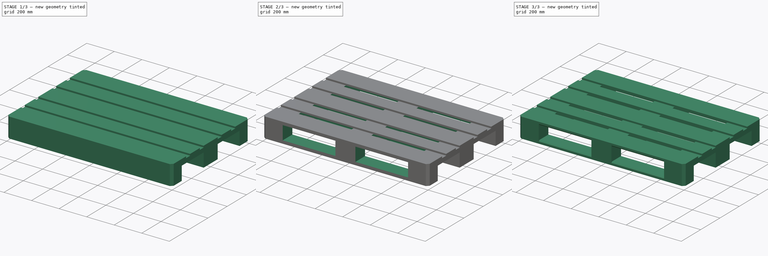
[diagram: build sequence overview — one tinted view per stage of 3, left to right]
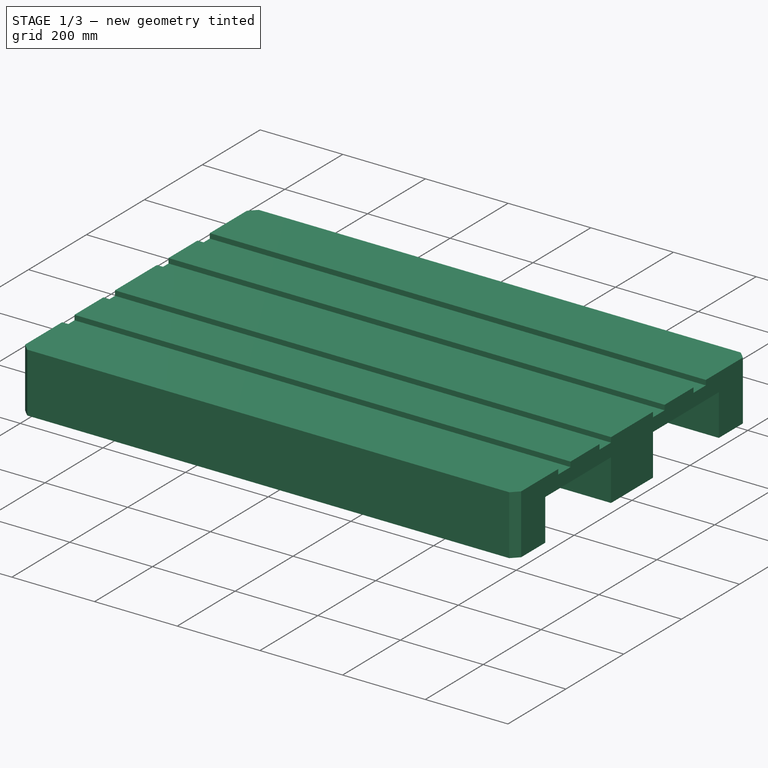
[diagram: stage 1 of 3 — iso view after this stage's code; geometry added in this stage tinted green]
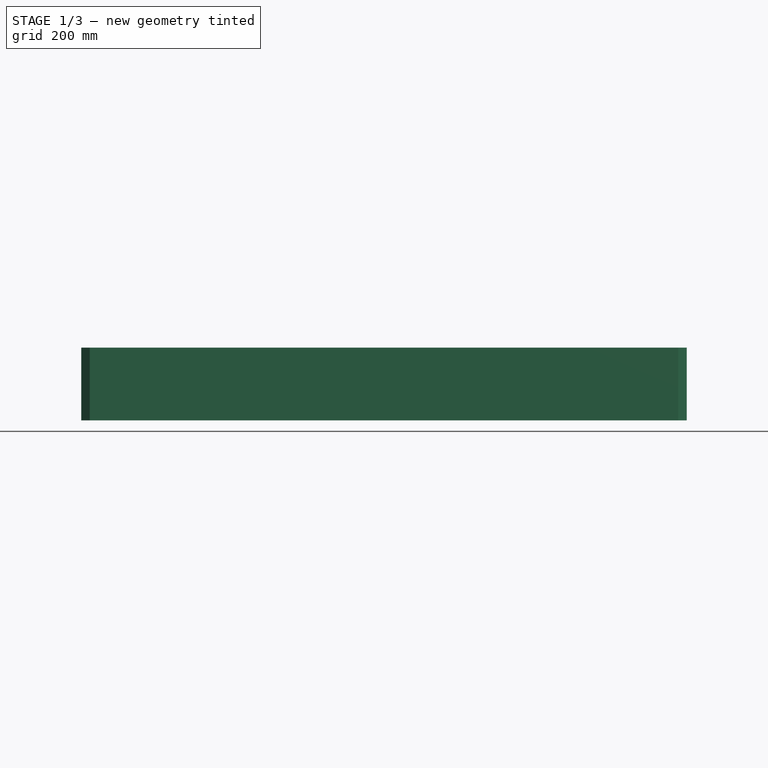
[diagram: stage 1 of 3 — front view after this stage's code; geometry added in this stage tinted green]
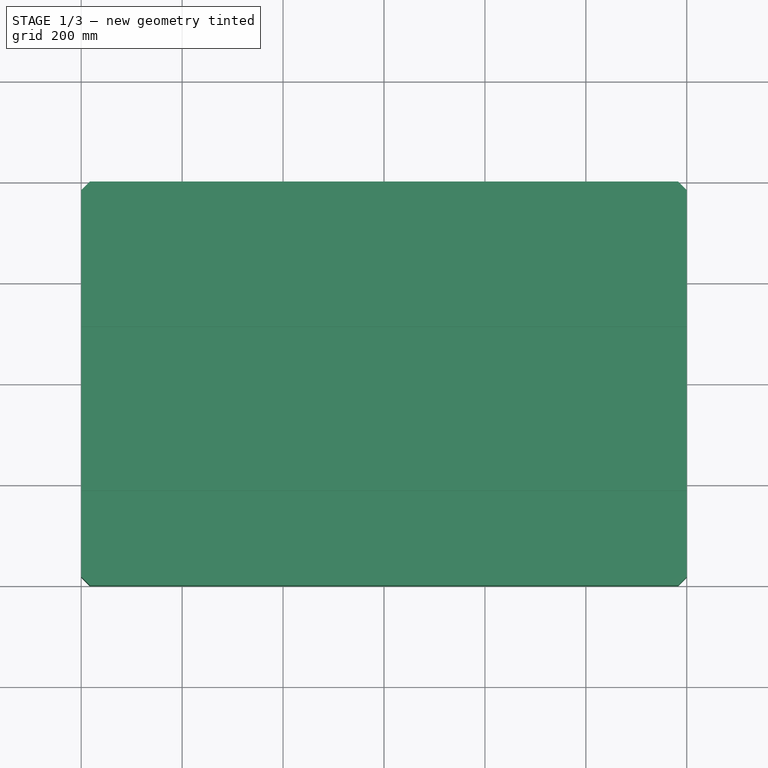
[diagram: stage 1 of 3 — top view after this stage's code; geometry added in this stage tinted green]
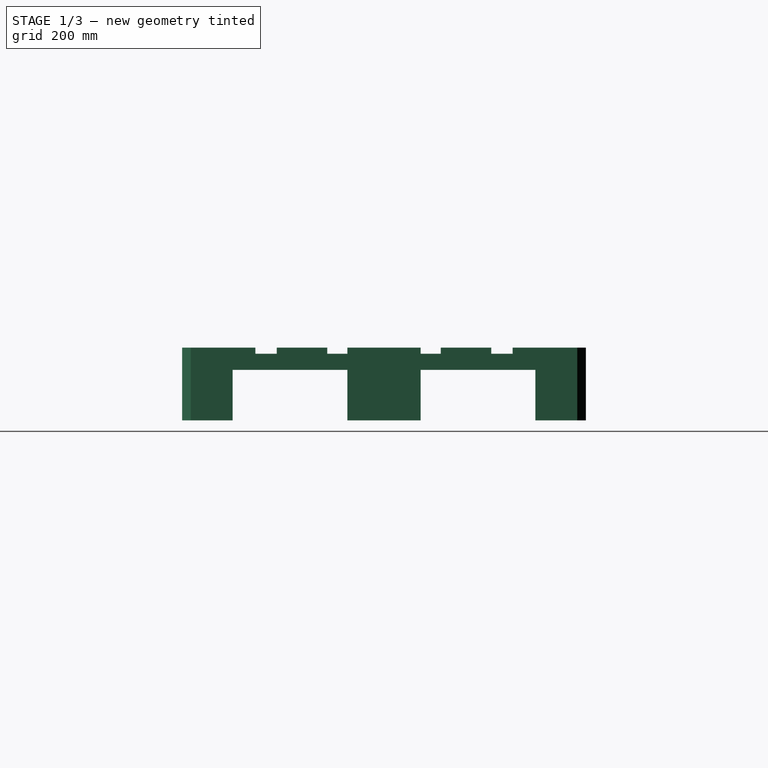
[diagram: stage 1 of 3 — right view after this stage's code; geometry added in this stage tinted green]
FCSTD DOCUMENT  (FreeCAD 0.21R33668 +26 (Git))
Label: eur-pallet
License: All rights reserved
LicenseURL: https://en.wikipedia.org/wiki/All_rights_reserved
objects: Sketcher::SketchObject×3, PartDesign::Chamfer×3, PartDesign::Pocket×2, PartDesign::Pad×1, PartDesign::Body×1, App::MaterialObjectPython×1, App::DocumentObjectGroupPython×1
note: 16 computed .brp shape members not serialized (recipe doc carries the construction recipe); baked Part::Feature solids carry a one-line shape summary decoded from their .brp

FEATURE [Sketcher::SketchObject] Sketch
  FullyConstrained = true
  MapMode = 5
  Placement = pos=(0,0,0) rot=(0.57735,0.57735,0.57735;2.0944rad)
  Support = -> [YZ_Plane]
  sketch-geometry (40):
    g0: LineSegment StartX=800 StartY=0 StartZ=0 EndX=800 EndY=144 EndZ=0
    g1: LineSegment StartX=0 StartY=144 StartZ=0 EndX=0 EndY=0 EndZ=0
    g2: GeomPoint X=100 Y=0 Z=0
    g3: GeomPoint X=700 Y=0 Z=0
    g4: LineSegment StartX=100 StartY=0 StartZ=0 EndX=100 EndY=100 EndZ=0
    g5: LineSegment StartX=700 StartY=0 StartZ=0 EndX=700 EndY=100 EndZ=0
    g6: GeomPoint X=327.5 Y=0 Z=0
    g7: GeomPoint X=472.5 Y=0 Z=0
    g8: LineSegment StartX=327.5 StartY=0 StartZ=0 EndX=327.5 EndY=100 EndZ=0
    g9: LineSegment StartX=472.5 StartY=0 StartZ=0 EndX=472.5 EndY=100 EndZ=0
    g10: LineSegment StartX=100 StartY=100 StartZ=0 EndX=327.5 EndY=100 EndZ=0
    g11: LineSegment StartX=472.5 StartY=100 StartZ=0 EndX=700 EndY=100 EndZ=0
    g12: GeomPoint X=145 Y=144 Z=0
    g13: GeomPoint X=655 Y=144 Z=0
    g14: GeomPoint X=327.5 Y=144 Z=0
    g15: GeomPoint X=472.5 Y=144 Z=0
    g16: LineSegment StartX=0 StartY=0 StartZ=0 EndX=100 EndY=0 EndZ=0
    g17: LineSegment StartX=327.5 StartY=0 StartZ=0 EndX=472.5 EndY=0 EndZ=0
    g18: LineSegment StartX=700 StartY=0 StartZ=0 EndX=800 EndY=0 EndZ=0
    g19: LineSegment StartX=145 StartY=144 StartZ=0 EndX=145 EndY=132 EndZ=0
    g20: GeomPoint X=187.5 Y=144 Z=0
    g21: LineSegment StartX=187.5 StartY=144 StartZ=0 EndX=187.5 EndY=132 EndZ=0
    g22: GeomPoint X=287.5 Y=144 Z=0
    g23: LineSegment StartX=327.5 StartY=144 StartZ=0 EndX=327.5 EndY=132 EndZ=0
    g24: LineSegment StartX=287.5 StartY=144 StartZ=0 EndX=287.5 EndY=132 EndZ=0
    g25: GeomPoint X=612.5 Y=144 Z=0
    g26: GeomPoint X=512.5 Y=144 Z=0
    g27: LineSegment StartX=512.5 StartY=144 StartZ=0 EndX=512.5 EndY=132 EndZ=0
    g28: LineSegment StartX=612.5 StartY=144 StartZ=0 EndX=612.5 EndY=132 EndZ=0
    g29: LineSegment StartX=472.5 StartY=144 StartZ=0 EndX=472.5 EndY=132 EndZ=0
    g30: LineSegment StartX=655 StartY=144 StartZ=0 EndX=655 EndY=132 EndZ=0
    g31: LineSegment StartX=145 StartY=132 StartZ=0 EndX=187.5 EndY=132 EndZ=0
    g32: LineSegment StartX=287.5 StartY=132 StartZ=0 EndX=327.5 EndY=132 EndZ=0
    g33: LineSegment StartX=472.5 StartY=132 StartZ=0 EndX=512.5 EndY=132 EndZ=0
    g34: LineSegment StartX=612.5 StartY=132 StartZ=0 EndX=655 EndY=132 EndZ=0
    g35: LineSegment StartX=0 StartY=144 StartZ=0 EndX=145 EndY=144 EndZ=0
    g36: LineSegment StartX=187.5 StartY=144 StartZ=0 EndX=287.5 EndY=144 EndZ=0
    g37: LineSegment StartX=327.5 StartY=144 StartZ=0 EndX=472.5 EndY=144 EndZ=0
    g38: LineSegment StartX=512.5 StartY=144 StartZ=0 EndX=612.5 EndY=144 EndZ=0
    g39: LineSegment StartX=655 StartY=144 StartZ=0 EndX=800 EndY=144 EndZ=0
  constraints (95):
    c: Vertical(g0)
    c: Vertical(g1)
    c: Coincident(g4,g2)
    c: Vertical(g4)
    c: Coincident(g5,g3)
    c: Vertical(g5)
    c: Coincident(g8,g6)
    c: Vertical(g8)
    c: Coincident(g9,g7)
    c: Vertical(g9)
    c: DistanceY(g4,g4) = 100
    c: DistanceX(g1,g4) = 100
    c: DistanceX(g5,g0) = 100
    c: Horizontal(g8,g4)
    c: Horizontal(g4,g9)
    c: Horizontal(g9,g5)
    c: DistanceX(g4,g8) = 227.5
    c: DistanceX(g8,g9) = 145
    c: DistanceX(g1,g0) = 800
    c: Coincident(g10,g4)
    c: Coincident(g10,g8)
    c: Coincident(g11,g9)
    c: Coincident(g11,g5)
    c: DistanceX(g1,g12) = 145
    c: DistanceX(g13,g0) = 145
    c: DistanceY(g1,g1) = 144
    c: Coincident(g16,g1)
    c: Coincident(g16,g4)
    c: Horizontal(g16)
    c: Coincident(g17,g8)
    c: Coincident(g17,g9)
    c: Horizontal(g17)
    c: Coincident(g18,g5)
    c: Coincident(g18,g0)
    c: Horizontal(g18)
    c: Coincident(g19,g12)
    c: Vertical(g19)
    c: Coincident(g21,g20)
    c: Vertical(g21)
    c: DistanceX(g14,g15) = 145
    c: Vertical(g8,g14)
    c: Coincident(g23,g14)
    c: Vertical(g23)
    c: Coincident(g24,g22)
    c: Vertical(g24)
    c: DistanceX(g21,g24) = 100
    c: Coincident(g27,g26)
    c: Vertical(g27)
    c: Coincident(g28,g25)
    c: Vertical(g28)
    c: DistanceX(g27,g28) = 100
    c: DistanceY(g19,g19) = 12
    c: Coincident(g29,g15)
    c: Vertical(g29)
    c: Coincident(g30,g13)
    c: Vertical(g30)
    c: Horizontal(g19,g21)
    c: Horizontal(g21,g24)
    c: Horizontal(g24,g23)
    c: Horizontal(g23,g29)
    c: Horizontal(g29,g27)
    c: Horizontal(g27,g28)
    c: Horizontal(g28,g30)
    c: Coincident(g31,g19)
    c: Coincident(g31,g21)
    c: Coincident(g32,g24)
    c: Coincident(g32,g23)
    c: Coincident(g33,g29)
    c: Coincident(g33,g27)
    c: Coincident(g34,g28)
    c: Coincident(g34,g30)
    c: Coincident(g35,g1)
    c: Coincident(g35,g19)
    c: Horizontal(g35)
    c: Coincident(g36,g21)
    c: Coincident(g36,g24)
    c: Horizontal(g36)
    c: Coincident(g37,g23)
    c: Coincident(g37,g29)
    c: Horizontal(g37)
    c: Coincident(g38,g27)
    c: Coincident(g38,g28)
    c: Horizontal(g38)
    c: Coincident(g39,g30)
    c: Coincident(g39,g0)
    c: Horizontal(g39)
    c: DistanceX(g24,g23) = 40
    c: DistanceX(g29,g27) = 40
    c: Horizontal(g19,g21)
    c: Horizontal(g24,g23)
    c: Horizontal(g29,g27)
    c: Horizontal(g28,g30)
    c: Coincident(g-1,g1)
    c: Horizontal(g8,g4)
    c: Horizontal(g9,g5)
FEATURE [PartDesign::Pad] Pad
  Direction = (1,-2e-16,3e-16)
  Length = 1200
  Length2 = 10
  Placement = pos=(0,0,0) rot=(1,1,1;2.0944rad)
  Profile = -> Sketch
  ReferenceAxis = -> Sketch [N_Axis]
  Type = 0
FEATURE [PartDesign::Chamfer] Chamfer
  Angle = 45
  Base = -> Pad [Edge61,Edge60,Edge6,Edge7]
  BaseFeature = -> Pad
  ChamferType = 0
  FlipDirection = false
  Placement = pos=(0,0,0) rot=(1,1,1;2.0944rad)
  Size = 17
  Size2 = 1
  SupportTransform = false
  UseAllEdges = false
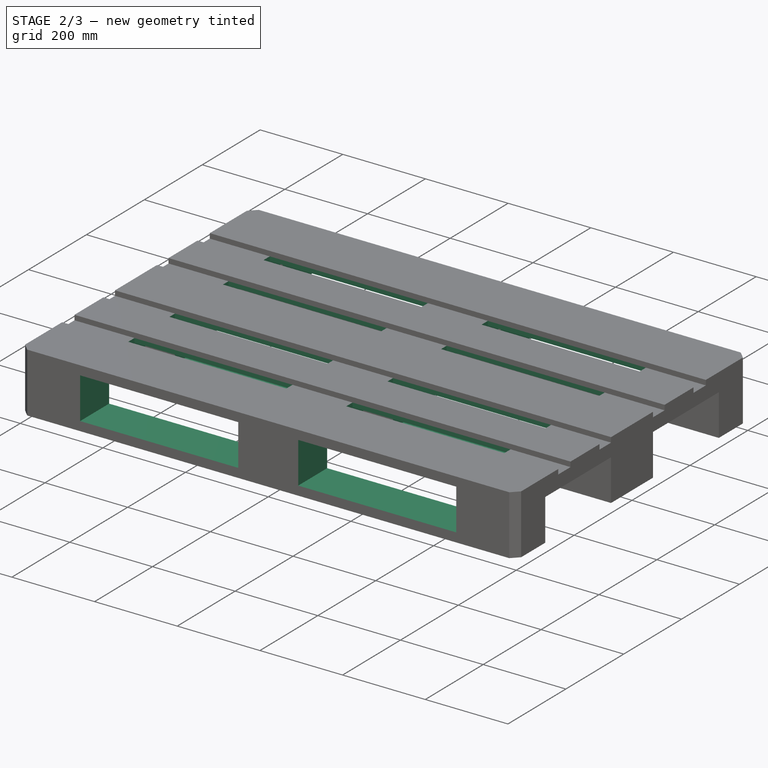
[diagram: stage 2 of 3 — iso view after this stage's code; geometry added in this stage tinted green]
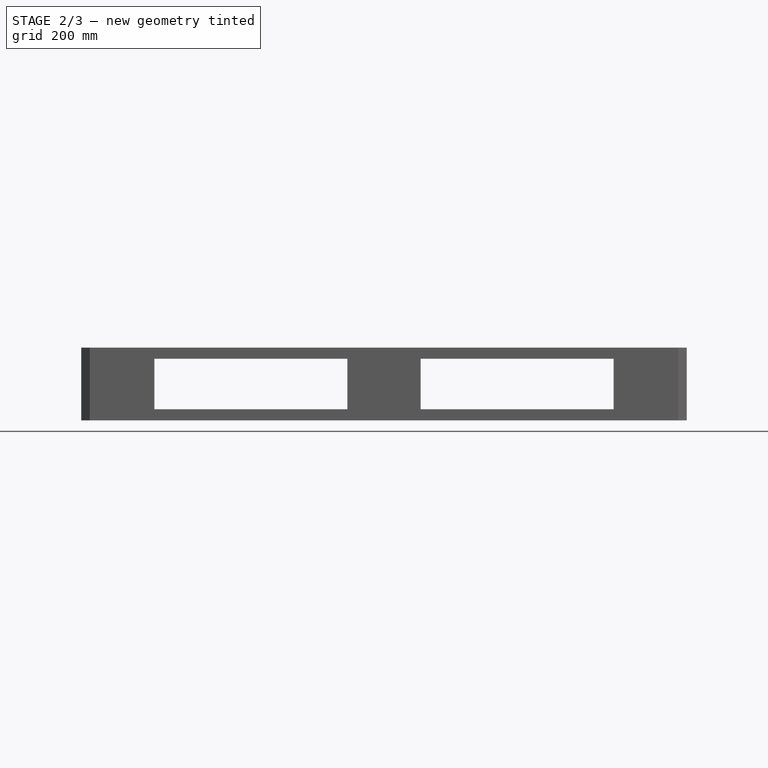
[diagram: stage 2 of 3 — front view after this stage's code; geometry added in this stage tinted green]
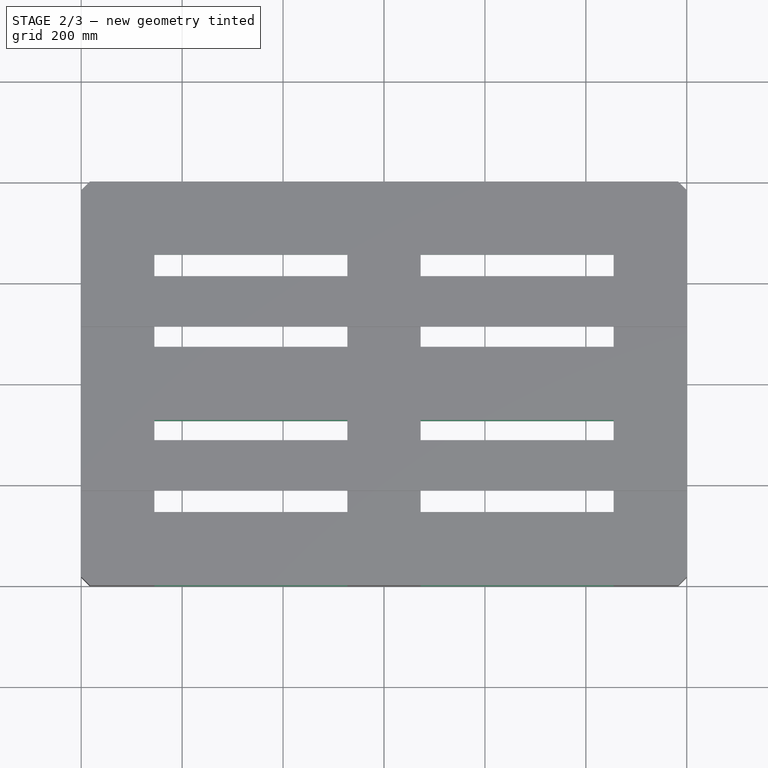
[diagram: stage 2 of 3 — top view after this stage's code; geometry added in this stage tinted green]
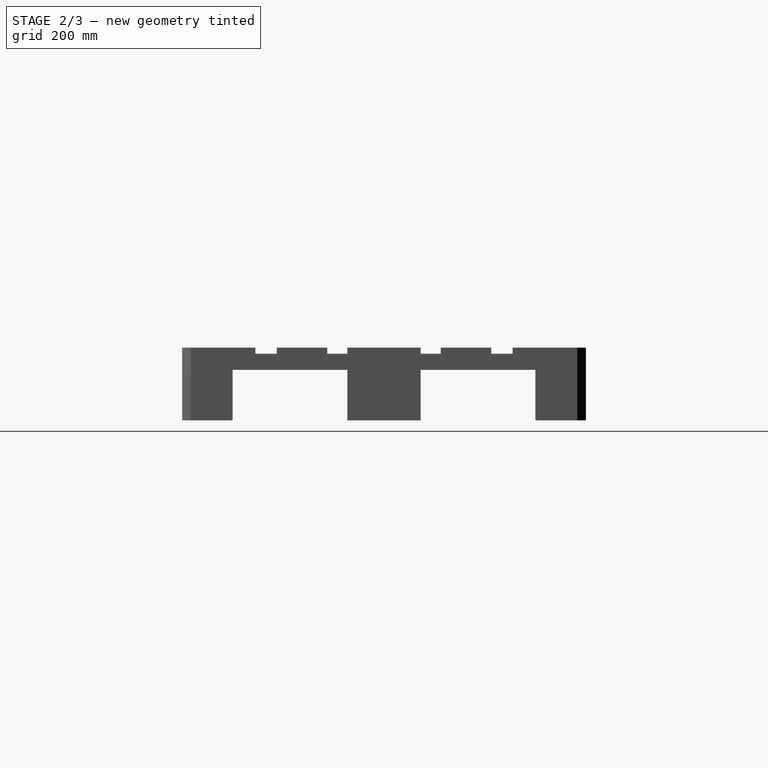
[diagram: stage 2 of 3 — right view after this stage's code; geometry added in this stage tinted green]
FEATURE [Sketcher::SketchObject] Sketch001
  ExternalGeometry = -> [Chamfer]
  FullyConstrained = true
  MapMode = 5
  Support = -> [XY_Plane]
  sketch-geometry (57):
    g0: LineSegment StartX=9.39e-14 StartY=783 StartZ=0 EndX=1200 EndY=783 EndZ=0
    g1: GeomPoint X=145 Y=783 Z=0
    g2: GeomPoint X=527.5 Y=783 Z=0
    g3: GeomPoint X=672.5 Y=783 Z=0
    g4: GeomPoint X=1055 Y=783 Z=0
    g5: LineSegment StartX=6.27e-14 StartY=612.5 StartZ=0 EndX=1200 EndY=612.5 EndZ=0
    g6: LineSegment StartX=1200 StartY=612.5 StartZ=0 EndX=1200 EndY=655 EndZ=0
    g7: LineSegment StartX=1200 StartY=655 StartZ=0 EndX=0 EndY=655 EndZ=0
    g8: LineSegment StartX=6.27e-14 StartY=655 StartZ=0 EndX=6.27e-14 EndY=612.5 EndZ=0
    g9: LineSegment StartX=1200 StartY=287.5 StartZ=0 EndX=0 EndY=287.5 EndZ=0
    g10: LineSegment StartX=-7.2e-15 StartY=287.5 StartZ=0 EndX=-7.2e-15 EndY=327.5 EndZ=0
    g11: LineSegment StartX=-7.2e-15 StartY=327.5 StartZ=0 EndX=1200 EndY=327.5 EndZ=0
    g12: LineSegment StartX=1200 StartY=327.5 StartZ=0 EndX=1200 EndY=287.5 EndZ=0
    g13: LineSegment StartX=0 StartY=472.5 StartZ=0 EndX=1200 EndY=472.5 EndZ=0
    g14: LineSegment StartX=1200 StartY=472.5 StartZ=0 EndX=1200 EndY=512.5 EndZ=0
    g15: LineSegment StartX=1200 StartY=512.5 StartZ=0 EndX=0 EndY=512.5 EndZ=0
    g16: LineSegment StartX=0 StartY=512.5 StartZ=0 EndX=0 EndY=472.5 EndZ=0
    g17: LineSegment StartX=1200 StartY=187.5 StartZ=0 EndX=0 EndY=187.5 EndZ=0
    g18: LineSegment StartX=-4.77e-14 StartY=187.5 StartZ=0 EndX=-4.77e-14 EndY=145 EndZ=0
    g19: LineSegment StartX=-4.77e-14 StartY=145 StartZ=0 EndX=1200 EndY=145 EndZ=0
    g20: LineSegment StartX=1200 StartY=145 StartZ=0 EndX=1200 EndY=187.5 EndZ=0
    g21: LineSegment StartX=145 StartY=783 StartZ=0 EndX=145 EndY=145 EndZ=0
    g22: LineSegment StartX=527.5 StartY=783 StartZ=0 EndX=527.5 EndY=145 EndZ=0
    g23: LineSegment StartX=1055 StartY=783 StartZ=0 EndX=1055 EndY=145 EndZ=0
    g24: LineSegment StartX=672.5 StartY=783 StartZ=0 EndX=672.5 EndY=145 EndZ=0
    g25: LineSegment StartX=527.5 StartY=145 StartZ=0 EndX=145 EndY=145 EndZ=0
    g26: LineSegment StartX=145 StartY=145 StartZ=0 EndX=145 EndY=187.5 EndZ=0
    g27: LineSegment StartX=145 StartY=187.5 StartZ=0 EndX=527.5 EndY=187.5 EndZ=0
    g28: LineSegment StartX=527.5 StartY=187.5 StartZ=0 EndX=527.5 EndY=145 EndZ=0
    g29: LineSegment StartX=672.5 StartY=145 StartZ=0 EndX=1055 EndY=145 EndZ=0
    g30: LineSegment StartX=1055 StartY=145 StartZ=0 EndX=1055 EndY=187.5 EndZ=0
    g31: LineSegment StartX=1055 StartY=187.5 StartZ=0 EndX=672.5 EndY=187.5 EndZ=0
    g32: LineSegment StartX=672.5 StartY=187.5 StartZ=0 EndX=672.5 EndY=145 EndZ=0
    g33: LineSegment StartX=145 StartY=287.5 StartZ=0 EndX=527.5 EndY=287.5 EndZ=0
    g34: LineSegment StartX=527.5 StartY=287.5 StartZ=0 EndX=527.5 EndY=327.5 EndZ=0
    g35: LineSegment StartX=527.5 StartY=327.5 StartZ=0 EndX=145 EndY=327.5 EndZ=0
    g36: LineSegment StartX=145 StartY=327.5 StartZ=0 EndX=145 EndY=287.5 EndZ=0
    g37: LineSegment StartX=672.5 StartY=287.5 StartZ=0 EndX=1055 EndY=287.5 EndZ=0
    g38: LineSegment StartX=1055 StartY=287.5 StartZ=0 EndX=1055 EndY=327.5 EndZ=0
    g39: LineSegment StartX=1055 StartY=327.5 StartZ=0 EndX=672.5 EndY=327.5 EndZ=0
    g40: LineSegment StartX=672.5 StartY=327.5 StartZ=0 EndX=672.5 EndY=287.5 EndZ=0
    g41: LineSegment StartX=145 StartY=472.5 StartZ=0 EndX=527.5 EndY=472.5 EndZ=0
    g42: LineSegment StartX=527.5 StartY=472.5 StartZ=0 EndX=527.5 EndY=512.5 EndZ=0
    g43: LineSegment StartX=527.5 StartY=512.5 StartZ=0 EndX=145 EndY=512.5 EndZ=0
    g44: LineSegment StartX=145 StartY=512.5 StartZ=0 EndX=145 EndY=472.5 EndZ=0
    g45: LineSegment StartX=672.5 StartY=472.5 StartZ=0 EndX=1055 EndY=472.5 EndZ=0
    g46: LineSegment StartX=1055 StartY=472.5 StartZ=0 EndX=1055 EndY=512.5 EndZ=0
    g47: LineSegment StartX=1055 StartY=512.5 StartZ=0 EndX=672.5 EndY=512.5 EndZ=0
    g48: LineSegment StartX=672.5 StartY=512.5 StartZ=0 EndX=672.5 EndY=472.5 EndZ=0
    g49: LineSegment StartX=145 StartY=612.5 StartZ=0 EndX=527.5 EndY=612.5 EndZ=0
    g50: LineSegment StartX=527.5 StartY=612.5 StartZ=0 EndX=527.5 EndY=655 EndZ=0
    g51: LineSegment StartX=527.5 StartY=655 StartZ=0 EndX=145 EndY=655 EndZ=0
    g52: LineSegment StartX=145 StartY=655 StartZ=0 EndX=145 EndY=612.5 EndZ=0
    g53: LineSegment StartX=672.5 StartY=612.5 StartZ=0 EndX=1055 EndY=612.5 EndZ=0
    g54: LineSegment StartX=1055 StartY=612.5 StartZ=0 EndX=1055 EndY=655 EndZ=0
    g55: LineSegment StartX=1055 StartY=655 StartZ=0 EndX=672.5 EndY=655 EndZ=0
    g56: LineSegment StartX=672.5 StartY=655 StartZ=0 EndX=672.5 EndY=612.5 EndZ=0
  constraints (156):
    c: Coincident(g0,g-3)
    c: Coincident(g0,g-13)
    c: PointOnObject(g1,g0)
    c: PointOnObject(g2,g0)
    c: PointOnObject(g3,g0)
    c: PointOnObject(g4,g0)
    c: DistanceX(g0,g1) = 145
    c: DistanceX(g4,g0) = 145
    c: DistanceX(g2,g3) = 145
    c: DistanceX(g3,g4) = 382.5
    c: Coincident(g5,g6)
    c: Coincident(g6,g7)
    c: Coincident(g7,g8)
    c: Coincident(g8,g5)
    c: Horizontal(g5)
    c: Horizontal(g7)
    c: Vertical(g6)
    c: Vertical(g8)
    c: Coincident(g5,g-21)
    c: Coincident(g6,g-13)
    c: Coincident(g9,g10)
    c: Coincident(g10,g11)
    c: Coincident(g11,g12)
    c: Coincident(g12,g9)
    c: Horizontal(g9)
    c: Horizontal(g11)
    c: Vertical(g10)
    c: Vertical(g12)
    c: Coincident(g9,g-8)
    c: Coincident(g10,g-18)
    c: Coincident(g13,g14)
    c: Coincident(g14,g15)
    c: Coincident(g15,g16)
    c: Coincident(g16,g13)
    c: Horizontal(g13)
    c: Horizontal(g15)
    c: Vertical(g14)
    c: Vertical(g16)
    c: Coincident(g13,g-19)
    c: Coincident(g14,g-11)
    c: Coincident(g17,g18)
    c: Coincident(g18,g19)
    c: Coincident(g19,g20)
    c: Coincident(g20,g17)
    c: Horizontal(g17)
    c: Horizontal(g19)
    c: Vertical(g18)
    c: Vertical(g20)
    c: Coincident(g17,g-7)
    c: Coincident(g18,g-22)
    c: Coincident(g21,g1)
    c: PointOnObject(g21,g19)
    c: Vertical(g21)
    c: Coincident(g22,g2)
    c: PointOnObject(g22,g19)
    c: Vertical(g22)
    c: Coincident(g23,g4)
    c: PointOnObject(g23,g19)
    c: Vertical(g23)
    c: Coincident(g24,g3)
    c: PointOnObject(g24,g19)
    c: Vertical(g24)
    c: Coincident(g25,g26)
    c: Coincident(g26,g27)
    c: Coincident(g27,g28)
    c: Coincident(g28,g25)
    c: Horizontal(g25)
    c: Horizontal(g27)
    c: Vertical(g26)
    c: Vertical(g28)
    c: Coincident(g25,g22)
    c: PointOnObject(g26,g21)
    c: Coincident(g29,g30)
    c: Coincident(g30,g31)
    c: Coincident(g31,g32)
    c: Coincident(g32,g29)
    c: Horizontal(g29)
    c: Horizontal(g31)
    c: Vertical(g30)
    c: Vertical(g32)
    c: Coincident(g29,g24)
    c: Horizontal(g26,g17)
    c: Horizontal(g31,g17)
    c: Vertical(g30,g4)
    c: Coincident(g33,g34)
    c: Coincident(g34,g35)
    c: Coincident(g35,g36)
    c: Coincident(g36,g33)
    c: Horizontal(g33)
    c: Horizontal(g35)
    c: Vertical(g34)
    c: Vertical(g36)
    c: PointOnObject(g33,g9)
    c: PointOnObject(g34,g11)
    c: Coincident(g37,g38)
    c: Coincident(g38,g39)
    c: Coincident(g39,g40)
    c: Coincident(g40,g37)
    c: Horizontal(g37)
    c: Horizontal(g39)
    c: Vertical(g38)
    c: Vertical(g40)
    c: PointOnObject(g37,g9)
    c: PointOnObject(g38,g11)
    c: Vertical(g1,g33)
    c: Vertical(g34,g2)
    c: Vertical(g39,g3)
    c: Vertical(g38,g4)
    c: Coincident(g41,g42)
    c: Coincident(g42,g43)
    c: Coincident(g43,g44)
    c: Coincident(g44,g41)
    c: Horizontal(g41)
    c: Horizontal(g43)
    c: Vertical(g42)
    c: Vertical(g44)
    c: PointOnObject(g41,g13)
    c: PointOnObject(g42,g15)
    c: Coincident(g45,g46)
    c: Coincident(g46,g47)
    c: Coincident(g47,g48)
    c: Coincident(g48,g45)
    c: Horizontal(g45)
    c: Horizontal(g47)
    c: Vertical(g46)
    c: Vertical(g48)
    c: PointOnObject(g45,g13)
    c: PointOnObject(g46,g15)
    c: Coincident(g49,g50)
    c: Coincident(g50,g51)
    c: Coincident(g51,g52)
    c: Coincident(g52,g49)
    c: Horizontal(g49)
    c: Horizontal(g51)
    c: Vertical(g50)
    c: Vertical(g52)
    c: PointOnObject(g49,g5)
    c: PointOnObject(g50,g7)
    c: Coincident(g53,g54)
    c: Coincident(g54,g55)
    c: Coincident(g55,g56)
    c: Coincident(g56,g53)
    c: Horizontal(g53)
    c: Horizontal(g55)
    c: Vertical(g54)
    c: Vertical(g56)
    c: PointOnObject(g53,g5)
    c: PointOnObject(g54,g7)
    c: Vertical(g41,g49)
    c: Vertical(g49,g1)
    c: Vertical(g41,g49)
    c: Vertical(g49,g2)
    c: Vertical(g45,g53)
    c: Vertical(g53,g3)
    c: Vertical(g53,g45)
    c: Vertical(g45,g4)
FEATURE [PartDesign::Pocket] Pocket
  BaseFeature = -> Chamfer
  Direction = (0,0,-1)
  Length = 144
  Length2 = 5
  Placement = pos=(0,0,0) rot=(1,1,1;2.0944rad)
  Profile = -> Sketch001
  ReferenceAxis = -> Sketch001 [N_Axis]
  Reversed = true
  Type = 0
FEATURE [Sketcher::SketchObject] Sketch002
  ExternalGeometry = -> [Pocket]
  FullyConstrained = true
  MapMode = 5
  Placement = pos=(3.553e-13,800,-5.329e-13) rot=(0.57735,0.57735,0.57735;4.18879rad)
  Support = -> [Pocket]
  sketch-geometry (14):
    g0: GeomPoint X=22 Y=1200 Z=0
    g1: GeomPoint X=122 Y=1200 Z=0
    g2: GeomPoint X=144 Y=1055 Z=0
    g3: GeomPoint X=144 Y=672.5 Z=0
    g4: GeomPoint X=144 Y=527.5 Z=0
    g5: GeomPoint X=144 Y=145 Z=0
    g6: LineSegment StartX=22 StartY=1055 StartZ=0 EndX=122 EndY=1055 EndZ=0
    g7: LineSegment StartX=122 StartY=1055 StartZ=0 EndX=122 EndY=672.5 EndZ=0
    g8: LineSegment StartX=122 StartY=672.5 StartZ=0 EndX=22 EndY=672.5 EndZ=0
    g9: LineSegment StartX=22 StartY=672.5 StartZ=0 EndX=22 EndY=1055 EndZ=0
    g10: LineSegment StartX=22 StartY=527.5 StartZ=0 EndX=122 EndY=527.5 EndZ=0
    g11: LineSegment StartX=122 StartY=527.5 StartZ=0 EndX=122 EndY=145 EndZ=0
    g12: LineSegment StartX=122 StartY=145 StartZ=0 EndX=22 EndY=145 EndZ=0
    g13: LineSegment StartX=22 StartY=145 StartZ=0 EndX=22 EndY=527.5 EndZ=0
  constraints (36):
    c: PointOnObject(g0,g-3)
    c: PointOnObject(g1,g-3)
    c: DistanceX(g1,g-3) = 22
    c: DistanceX(g-3,g0) = 22
    c: PointOnObject(g2,g-4)
    c: PointOnObject(g3,g-4)
    c: PointOnObject(g4,g-4)
    c: PointOnObject(g5,g-4)
    c: DistanceY(g-5,g5) = 145
    c: DistanceY(g4,g3) = 145
    c: DistanceY(g2,g-3) = 145
    c: DistanceY(g3,g2) = 382.5
    c: Coincident(g6,g7)
    c: Coincident(g7,g8)
    c: Coincident(g8,g9)
    c: Coincident(g9,g6)
    c: Horizontal(g6)
    c: Horizontal(g8)
    c: Vertical(g7)
    c: Vertical(g9)
    c: Coincident(g10,g11)
    c: Coincident(g11,g12)
    c: Coincident(g12,g13)
    c: Coincident(g13,g10)
    c: Horizontal(g10)
    c: Horizontal(g12)
    c: Vertical(g11)
    c: Vertical(g13)
    c: Horizontal(g5,g12)
    c: Horizontal(g10,g4)
    c: Horizontal(g8,g3)
    c: Horizontal(g6,g2)
    c: Vertical(g0,g6)
    c: Vertical(g6,g10)
    c: Vertical(g1,g6)
    c: Vertical(g6,g10)
FEATURE [PartDesign::Pocket] Pocket001
  BaseFeature = -> Pocket
  Direction = (-4e-16,-1,6e-16)
  Length = 800
  Length2 = 5
  Placement = pos=(0,0,0) rot=(1,1,1;2.0944rad)
  Profile = -> Sketch002
  ReferenceAxis = -> Sketch002 [N_Axis]
  Type = 0
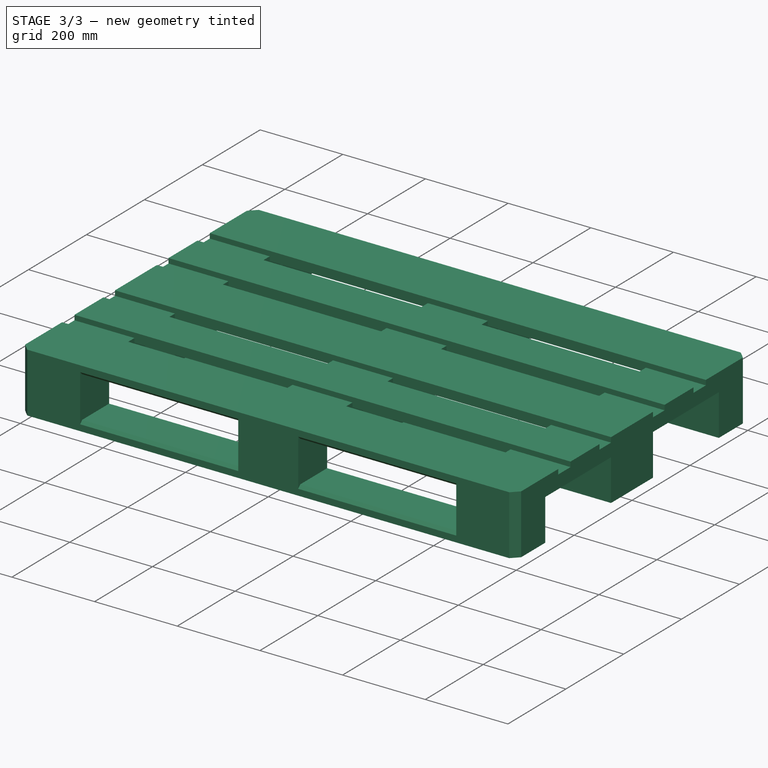
[diagram: stage 3 of 3 — iso view after this stage's code; geometry added in this stage tinted green]
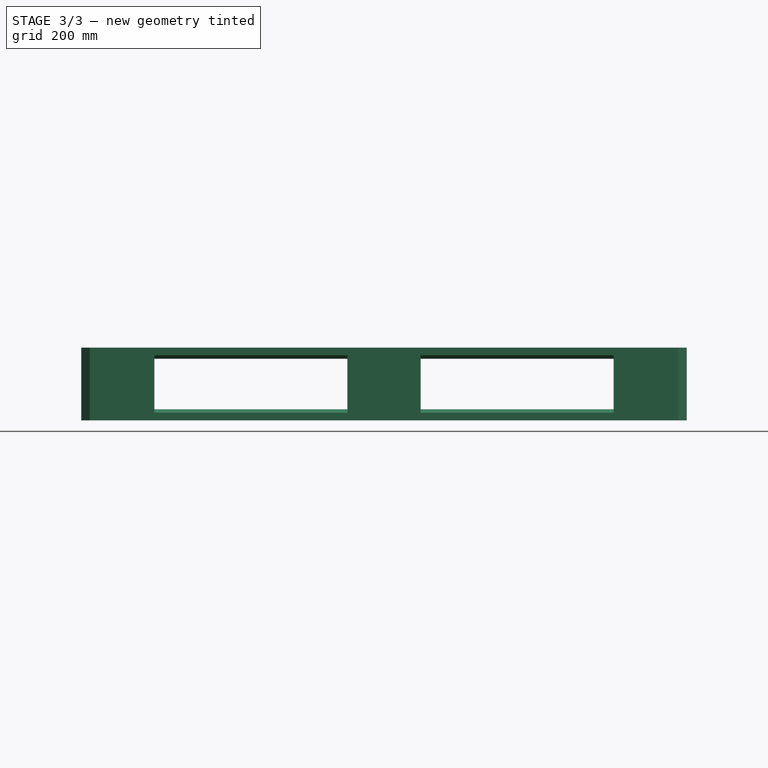
[diagram: stage 3 of 3 — front view after this stage's code; geometry added in this stage tinted green]
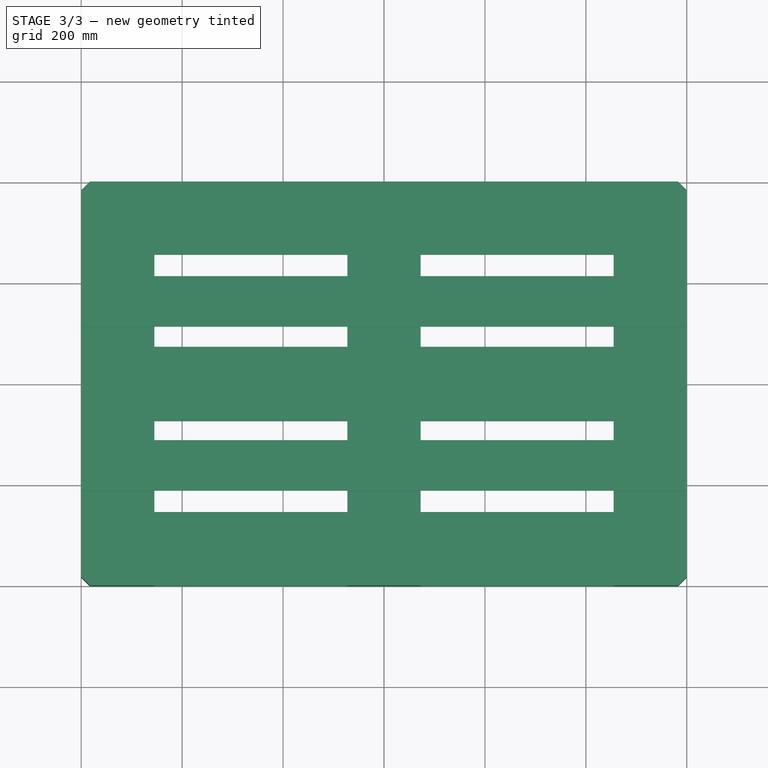
[diagram: stage 3 of 3 — top view after this stage's code; geometry added in this stage tinted green]
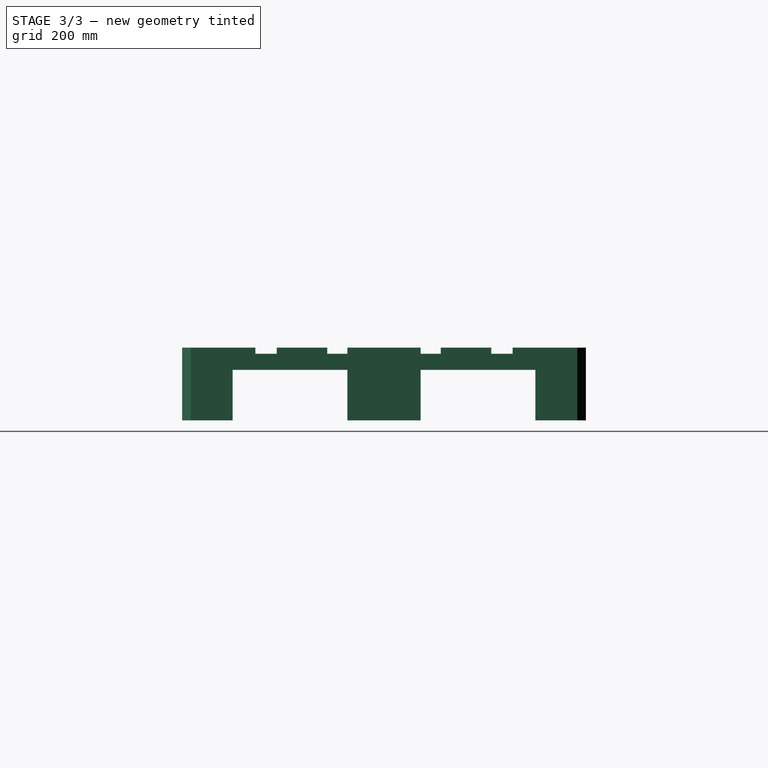
[diagram: stage 3 of 3 — right view after this stage's code; geometry added in this stage tinted green]
FEATURE [PartDesign::Chamfer] Chamfer001
  Angle = 45
  Base = -> Pocket001 [Edge317,Edge300,Edge323,Edge324]
  BaseFeature = -> Pocket001
  ChamferType = 0
  FlipDirection = false
  Placement = pos=(0,0,0) rot=(1,1,1;2.0944rad)
  Size = 7
  Size2 = 1
  SupportTransform = false
  UseAllEdges = false
FEATURE [PartDesign::Chamfer] Chamfer002
  Angle = 45
  Base = -> Chamfer001 [Edge312,Edge310,Edge314,Edge316]
  BaseFeature = -> Chamfer001
  ChamferType = 0
  FlipDirection = false
  Placement = pos=(0,0,0) rot=(1,1,1;2.0944rad)
  Size = 7
  Size2 = 1
  SupportTransform = false
  UseAllEdges = false
FEATURE [PartDesign::Body] Body
  Group = -> [Sketch,Pad,Chamfer,Sketch001,Pocket,Sketch002,Pocket001,Chamfer001,Chamfer002]
  Origin = -> Origin
  Tip = -> Chamfer002
FEATURE [App::MaterialObjectPython] Material  label="Wood"  # material (typed FeaturePython)
  Description = A standard construction wood
  Material = AuthorAndLicense=(c) 2015 Bernd Hahnebach (CC-BY 3.0); CardName=Wood-Generic; Color=(0.8, 0.8, 0.8, 1.0); Density=700 kg/m^3; Description=A standard construction wood; DiffuseColor=(0.8, 0.8, 0.8, 1.0); Father=Aggregate; Name=Wood; PoissonRatio=0.05; ProductURL=https://en.wikipedia.org/wiki/Wood; SectionColor=(0.8, 0.8, 0.8, 1.0); Transparency=0; ViewColor=(0.8, 0.8, 0.8, 1.0); YoungsModulus=12000 MPa
  ProductURL = https://en.wikipedia.org/wiki/Wood
  Transparency = 0
FEATURE [App::DocumentObjectGroupPython] MaterialContainer  label="Materials"  # scripted group (container) (typed FeaturePython)
  Group = -> [Material]
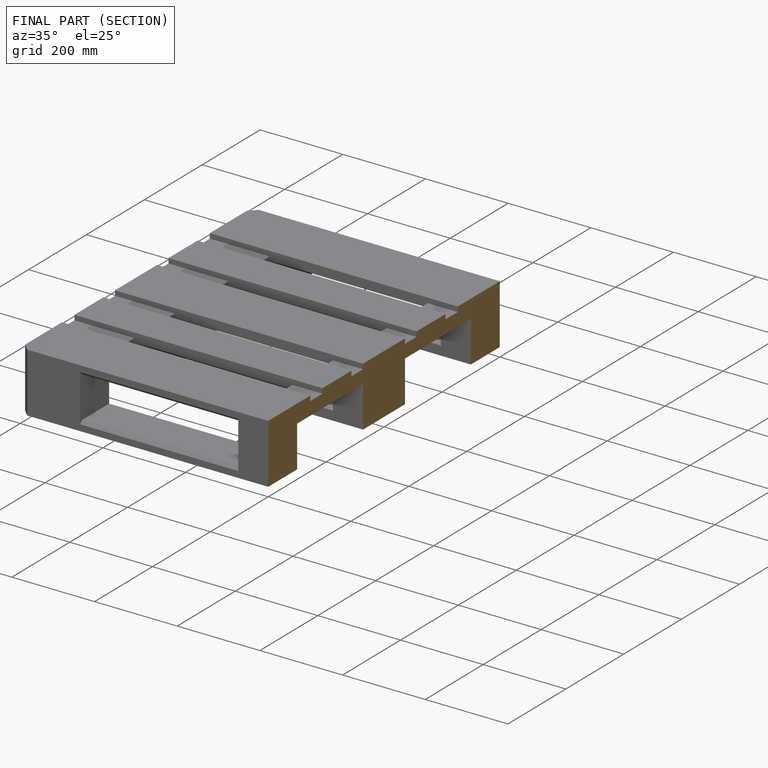
[diagram: finished part — half-section view (interior)]
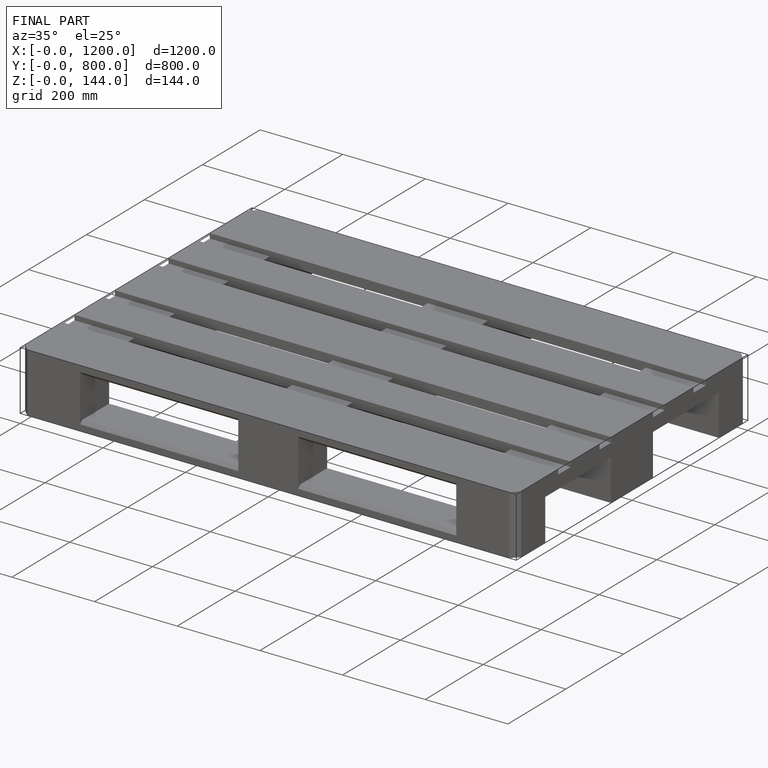
[diagram: finished part — iso view with bounding-box wireframe]
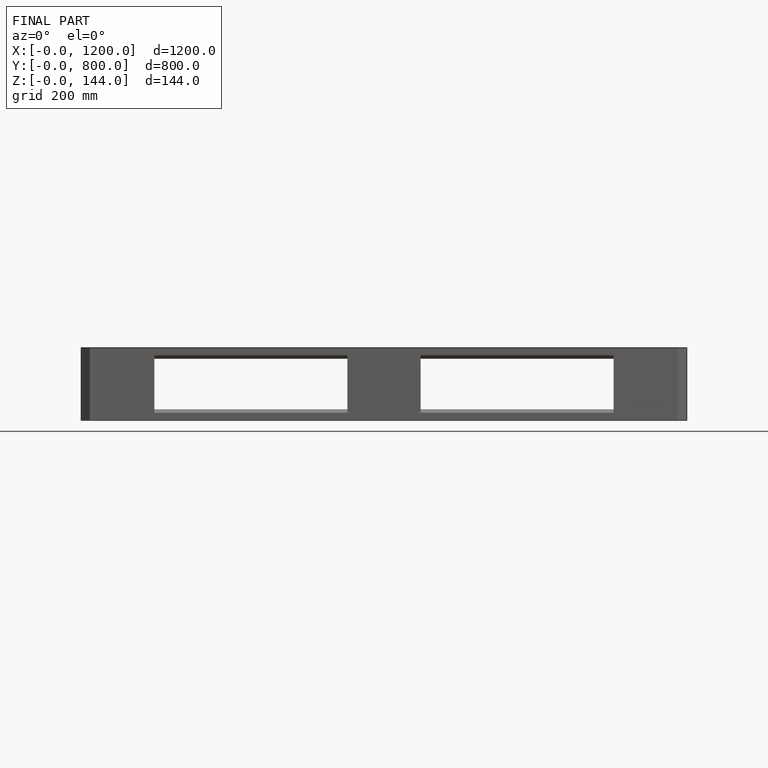
[diagram: finished part — front view with bounding-box wireframe]
